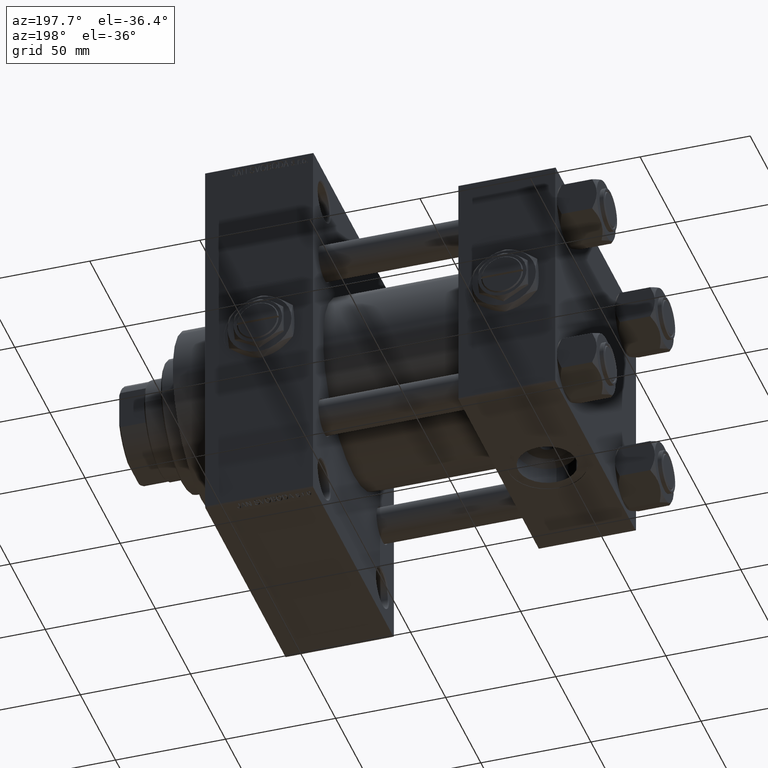
[diagram: clean part render]
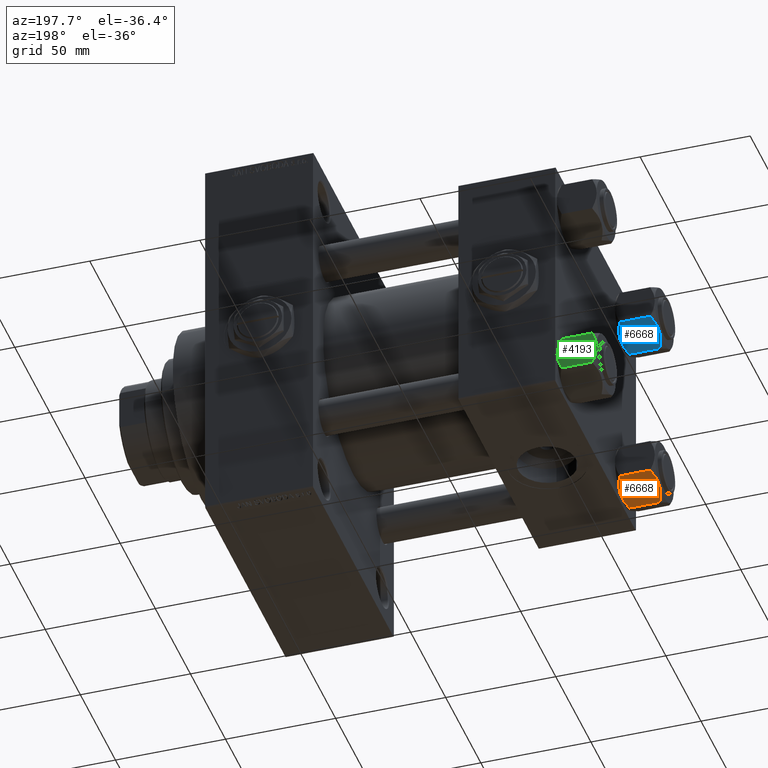
[diagram: same view with three faces highlighted in distinct colors, each labeled with its STEP entity id]
A machine part, auxiliary view with three faces highlighted in distinct colors.
Their STEP definitions:

[orange] entity #6668 — the highlighted planar face has unit normal (0, -0.5, 0.866).
#796 = LINE ( 'NONE', #23458, #42008 ) ;
#1434 = VERTEX_POINT ( 'NONE', #40582 ) ;
#1757 = VERTEX_POINT ( 'NONE', #40022 ) ;
#2180 = ORIENTED_EDGE ( 'NONE', *, *, #19809, .F. ) ;
#3326 = DIRECTION ( 'NONE',  ( -0.000000000000000000, -0.000000000000000000, 1.000000000000000000 ) ) ;
#3561 = CARTESIAN_POINT ( 'NONE',  ( 12.04818928091285635, -6.186557640478064890, -17.99999999999999645 ) ) ;
#3721 = VERTEX_POINT ( 'NONE', #48767 ) ;
#3804 = EDGE_CURVE ( 'NONE', #1757, #20440, #23828, .T. ) ;
#4008 = PLANE ( 'NONE',  #46385 ) ;
#4529 = CARTESIAN_POINT ( 'NONE',  ( 15.62000000000000455, -3.536926823623210771E-15, -16.00000000000000000 ) ) ;
#4910 = B_SPLINE_CURVE_WITH_KNOTS ( 'NONE', 3,
 ( #41395, #7141, #37620, #18486, #33833, #49192, #22509, #30060 ),
 .UNSPECIFIED., .F., .F.,
 ( 4, 2, 2, 4 ),
 ( 4.472842641884425184E-07, 0.003945636373369303986, 0.005918230917921863538, 0.007890825462474423957 ),
 .UNSPECIFIED. ) ;
#6599 = CARTESIAN_POINT ( 'NONE',  ( 14.92760668674625180, -1.199260397376455067, -16.58801072835992585 ) ) ;
#6668 = ADVANCED_FACE ( 'NONE', ( #23147 ), #4008, .F. ) ;
#6874 = VECTOR ( 'NONE', #43008, 999.9999999999998863 ) ;
#7141 = CARTESIAN_POINT ( 'NONE',  ( 8.502393313253758578, -12.32805640973648309, -1.411989271640068599 ) ) ;
#8682 = EDGE_CURVE ( 'NONE', #25413, #44600, #42943, .T. ) ;
#9401 = EDGE_CURVE ( 'NONE', #44600, #31533, #23045, .T. ) ;
#9485 = CARTESIAN_POINT ( 'NONE',  ( 7.903528262322682352, -13.36532110482643176, -16.00000000000000000 ) ) ;
#11119 = VERTEX_POINT ( 'NONE', #4529 ) ;
#11131 = LINE ( 'NONE', #37821, #30720 ) ;
#11246 = CARTESIAN_POINT ( 'NONE',  ( 10.40215497533437627, -9.037572688741349225, -17.80281335400754372 ) ) ;
#11763 = CARTESIAN_POINT ( 'NONE',  ( 15.52647173767733157, -0.1619957022865091689, -2.000000000000000000 ) ) ;
#12150 = DIRECTION ( 'NONE',  ( 0.5000000000000001110, 0.8660254037844387076, -0.000000000000000000 ) ) ;
#12198 = EDGE_CURVE ( 'NONE', #11119, #25413, #14824, .T. ) ;
#12590 = ORIENTED_EDGE ( 'NONE', *, *, #30969, .T. ) ;
#12751 = EDGE_CURVE ( 'NONE', #43592, #3721, #4910, .T. ) ;
#13408 = CARTESIAN_POINT ( 'NONE',  ( 7.903528262322682352, -13.36532110482643176, -2.000000000000000000 ) ) ;
#13466 = EDGE_CURVE ( 'NONE', #31533, #1757, #18307, .T. ) ;
#13630 = EDGE_LOOP ( 'NONE', ( #37164, #12590, #38223, #2180, #27986, #21152, #31829, #41429, #24706, #16872 ) ) ;
#14824 = LINE ( 'NONE', #15812, #6874 ) ;
#15540 = CARTESIAN_POINT ( 'NONE',  ( 12.37702203890362895, -5.617002596445058060, 1.219727444046192488E-16 ) ) ;
#15812 = CARTESIAN_POINT ( 'NONE',  ( 15.62000000000000455, -3.536926823623210771E-15, -16.00000000000000000 ) ) ;
#16164 = DIRECTION ( 'NONE',  ( 0.5000000000000001110, 0.8660254037844387076, -0.000000000000000000 ) ) ;
#16872 = ORIENTED_EDGE ( 'NONE', *, *, #8682, .F. ) ;
#17381 = VECTOR ( 'NONE', #29880, 999.9999999999998863 ) ;
#18023 = CARTESIAN_POINT ( 'NONE',  ( 15.62000000000000455, -3.536926823623210771E-15, -18.00000000000000000 ) ) ;
#18307 = LINE ( 'NONE', #49013, #17381 ) ;
#18486 = CARTESIAN_POINT ( 'NONE',  ( 10.06459418565412989, -9.622245127110609531, -0.3836066851120581433 ) ) ;
#19073 = CARTESIAN_POINT ( 'NONE',  ( 13.99051971937274708, -2.822342635978012826, -0.7317196846281138756 ) ) ;
#19809 = EDGE_CURVE ( 'NONE', #3721, #1434, #25906, .T. ) ;
#19915 = VECTOR ( 'NONE', #38426, 1000.000000000000000 ) ;
#20382 = DIRECTION ( 'NONE',  ( -0.8660254037844387076, 0.5000000000000001110, 0.000000000000000000 ) ) ;
#20440 = VERTEX_POINT ( 'NONE', #46069 ) ;
#21152 = ORIENTED_EDGE ( 'NONE', *, *, #33279, .F. ) ;
#22509 = CARTESIAN_POINT ( 'NONE',  ( 11.38181071908715047, -7.340759166634875044, -6.776263578034402713E-17 ) ) ;
#23045 = B_SPLINE_CURVE_WITH_KNOTS ( 'NONE', 3,
 ( #23572, #42959, #11246, #42203, #34888, #35143, #46473, #49508 ),
 .UNSPECIFIED., .F., .F.,
 ( 4, 2, 2, 4 ),
 ( 0.007890825462474429161, 0.01181022244528553977, 0.01376992093669109768, 0.01572961942809665559 ),
 .UNSPECIFIED. ) ;
#23147 = FACE_OUTER_BOUND ( 'NONE', #13630, .T. ) ;
#23342 = CARTESIAN_POINT ( 'NONE',  ( 14.30591678195076533, -2.276058899034901550, -0.9473872146228129454 ) ) ;
#23458 = CARTESIAN_POINT ( 'NONE',  ( 15.62000000000000455, -3.536926823623210771E-15, -1.999999999999998224 ) ) ;
#23572 = CARTESIAN_POINT ( 'NONE',  ( 11.71500000000000519, -6.763658403556470411, -18.00000000000000000 ) ) ;
#23828 = LINE ( 'NONE', #28104, #19915 ) ;
#24706 = ORIENTED_EDGE ( 'NONE', *, *, #9401, .F. ) ;
#25413 = VERTEX_POINT ( 'NONE', #44704 ) ;
#25906 = B_SPLINE_CURVE_WITH_KNOTS ( 'NONE', 3,
 ( #26369, #15540, #38204, #19073, #23342, #49777, #46241, #11763 ),
 .UNSPECIFIED., .F., .F.,
 ( 4, 2, 2, 4 ),
 ( 0.007890825462474423957, 0.01181022244528553630, 0.01376992093669109421, 0.01572961942809665212 ),
 .UNSPECIFIED. ) ;
#26369 = CARTESIAN_POINT ( 'NONE',  ( 11.71500000000000519, -6.763658403556470411, 0.000000000000000000 ) ) ;
#26708 = CARTESIAN_POINT ( 'NONE',  ( 14.31545111198822262, -2.259544954993898624, -17.08577173959729834 ) ) ;
#27986 = ORIENTED_EDGE ( 'NONE', *, *, #12751, .F. ) ;
#28104 = CARTESIAN_POINT ( 'NONE',  ( 7.810000000000007603, -13.52731680711293016, -18.00000000000000000 ) ) ;
#29513 = CARTESIAN_POINT ( 'NONE',  ( 12.38621571200405391, -5.601078687526932498, -17.94910618364698607 ) ) ;
#29880 = DIRECTION ( 'NONE',  ( -0.5000000000000001110, -0.8660254037844387076, 0.000000000000000000 ) ) ;
#30060 = CARTESIAN_POINT ( 'NONE',  ( 11.71500000000000519, -6.763658403556470411, 0.000000000000000000 ) ) ;
#30720 = VECTOR ( 'NONE', #3326, 1000.000000000000000 ) ;
#30969 = EDGE_CURVE ( 'NONE', #11119, #46197, #11131, .T. ) ;
#31533 = VERTEX_POINT ( 'NONE', #9485 ) ;
#31829 = ORIENTED_EDGE ( 'NONE', *, *, #3804, .F. ) ;
#31993 = EDGE_CURVE ( 'NONE', #1434, #46197, #796, .T. ) ;
#32804 = CARTESIAN_POINT ( 'NONE',  ( 15.52647173767733157, -0.1619957022865091689, -16.00000000000000000 ) ) ;
#33279 = EDGE_CURVE ( 'NONE', #20440, #43592, #45882, .T. ) ;
#33536 = CARTESIAN_POINT ( 'NONE',  ( 13.36540581434588049, -3.905071680002326406, -17.61639331488793658 ) ) ;
#33833 = CARTESIAN_POINT ( 'NONE',  ( 10.38662926516872531, -9.064464007571851667, -0.2430846701012975009 ) ) ;
#34720 = CARTESIAN_POINT ( 'NONE',  ( 11.71500000000000519, -6.763658403556470411, -18.00000000000000000 ) ) ;
#34888 = CARTESIAN_POINT ( 'NONE',  ( 9.124083218049246824, -11.25125790807804016, -17.05261278537718539 ) ) ;
#35143 = CARTESIAN_POINT ( 'NONE',  ( 8.506059550806623903, -12.32170630002230638, -16.56553707812499354 ) ) ;
#35729 = DIRECTION ( 'NONE',  ( -0.5000000000000000000, -0.8660254037844385966, 0.000000000000000000 ) ) ;
#37164 = ORIENTED_EDGE ( 'NONE', *, *, #12198, .F. ) ;
#37620 = CARTESIAN_POINT ( 'NONE',  ( 9.114548888011794858, -11.26777185211903998, -0.9142282604026928938 ) ) ;
#37821 = CARTESIAN_POINT ( 'NONE',  ( 15.62000000000000455, -3.536926823623210771E-15, -18.00000000000000000 ) ) ;
#38025 = VECTOR ( 'NONE', #12150, 999.9999999999998863 ) ;
#38094 = CARTESIAN_POINT ( 'NONE',  ( 15.62000000000000455, -3.536926823623210771E-15, -1.999999999999998224 ) ) ;
#38204 = CARTESIAN_POINT ( 'NONE',  ( 13.02784502466563588, -4.489744118371591597, -0.1971866459924554171 ) ) ;
#38223 = ORIENTED_EDGE ( 'NONE', *, *, #31993, .F. ) ;
#38426 = DIRECTION ( 'NONE',  ( -0.000000000000000000, -0.000000000000000000, 1.000000000000000000 ) ) ;
#40022 = CARTESIAN_POINT ( 'NONE',  ( 7.810000000000007603, -13.52731680711293016, -16.00000000000000000 ) ) ;
#40582 = CARTESIAN_POINT ( 'NONE',  ( 15.52647173767733157, -0.1619957022865091689, -2.000000000000000000 ) ) ;
#41395 = CARTESIAN_POINT ( 'NONE',  ( 7.903528262322682352, -13.36532110482643176, -2.000000000000000000 ) ) ;
#41429 = ORIENTED_EDGE ( 'NONE', *, *, #13466, .F. ) ;
#41587 = CARTESIAN_POINT ( 'NONE',  ( 11.71500000000000519, -6.763658403556470411, -18.00000000000000000 ) ) ;
#42008 = VECTOR ( 'NONE', #16164, 999.9999999999998863 ) ;
#42203 = CARTESIAN_POINT ( 'NONE',  ( 9.439480280627265074, -10.70497417113492666, -17.26828031537187869 ) ) ;
#42943 = B_SPLINE_CURVE_WITH_KNOTS ( 'NONE', 3,
 ( #32804, #6599, #26708, #33536, #49384, #29513, #3561, #41587 ),
 .UNSPECIFIED., .F., .F.,
 ( 4, 2, 2, 4 ),
 ( 4.472842641924621132E-07, 0.003945636373369313527, 0.005918230917921871344, 0.007890825462474429161 ),
 .UNSPECIFIED. ) ;
#42959 = CARTESIAN_POINT ( 'NONE',  ( 11.05297796109638320, -7.910314210667885426, -18.00000000000000000 ) ) ;
#43008 = DIRECTION ( 'NONE',  ( -0.5000000000000001110, -0.8660254037844387076, 0.000000000000000000 ) ) ;
#43592 = VERTEX_POINT ( 'NONE', #13408 ) ;
#43936 = CARTESIAN_POINT ( 'NONE',  ( 15.62000000000000455, -3.536926823623210771E-15, -1.999999999999998224 ) ) ;
#44600 = VERTEX_POINT ( 'NONE', #34720 ) ;
#44704 = CARTESIAN_POINT ( 'NONE',  ( 15.52647173767733157, -0.1619957022865091689, -16.00000000000000000 ) ) ;
#45882 = LINE ( 'NONE', #38094, #38025 ) ;
#46069 = CARTESIAN_POINT ( 'NONE',  ( 7.810000000000007603, -13.52731680711293016, -1.999999999999998224 ) ) ;
#46197 = VERTEX_POINT ( 'NONE', #43936 ) ;
#46241 = CARTESIAN_POINT ( 'NONE',  ( 15.22736220980736732, -0.6800686015852290822, -1.706311779141445495 ) ) ;
#46385 = AXIS2_PLACEMENT_3D ( 'NONE', #18023, #20382, #35729 ) ;
#46473 = CARTESIAN_POINT ( 'NONE',  ( 8.202637790192648382, -12.84724820552770908, -16.29368822085855584 ) ) ;
#48767 = CARTESIAN_POINT ( 'NONE',  ( 11.71500000000000519, -6.763658403556470411, 0.000000000000000000 ) ) ;
#49013 = CARTESIAN_POINT ( 'NONE',  ( 15.62000000000000455, -3.536926823623210771E-15, -16.00000000000000000 ) ) ;
#49192 = CARTESIAN_POINT ( 'NONE',  ( 11.04378428799595646, -7.926238119586006547, -0.05089381635301474388 ) ) ;
#49384 = CARTESIAN_POINT ( 'NONE',  ( 13.04337073483128862, -4.462852799541089155, -17.75691532989871035 ) ) ;
#49508 = CARTESIAN_POINT ( 'NONE',  ( 7.903528262322682352, -13.36532110482643176, -16.00000000000000000 ) ) ;
#49777 = CARTESIAN_POINT ( 'NONE',  ( 14.92394044919338825, -1.205610507090637107, -1.434462921875002239 ) ) ;

[blue] entity #6668 — the highlighted planar face has unit normal (0, -0.5, 0.866).
#796 = LINE ( 'NONE', #23458, #42008 ) ;
#1434 = VERTEX_POINT ( 'NONE', #40582 ) ;
#1757 = VERTEX_POINT ( 'NONE', #40022 ) ;
#2180 = ORIENTED_EDGE ( 'NONE', *, *, #19809, .F. ) ;
#3326 = DIRECTION ( 'NONE',  ( -0.000000000000000000, -0.000000000000000000, 1.000000000000000000 ) ) ;
#3561 = CARTESIAN_POINT ( 'NONE',  ( 12.04818928091285635, -6.186557640478064890, -17.99999999999999645 ) ) ;
#3721 = VERTEX_POINT ( 'NONE', #48767 ) ;
#3804 = EDGE_CURVE ( 'NONE', #1757, #20440, #23828, .T. ) ;
#4008 = PLANE ( 'NONE',  #46385 ) ;
#4529 = CARTESIAN_POINT ( 'NONE',  ( 15.62000000000000455, -3.536926823623210771E-15, -16.00000000000000000 ) ) ;
#4910 = B_SPLINE_CURVE_WITH_KNOTS ( 'NONE', 3,
 ( #41395, #7141, #37620, #18486, #33833, #49192, #22509, #30060 ),
 .UNSPECIFIED., .F., .F.,
 ( 4, 2, 2, 4 ),
 ( 4.472842641884425184E-07, 0.003945636373369303986, 0.005918230917921863538, 0.007890825462474423957 ),
 .UNSPECIFIED. ) ;
#6599 = CARTESIAN_POINT ( 'NONE',  ( 14.92760668674625180, -1.199260397376455067, -16.58801072835992585 ) ) ;
#6668 = ADVANCED_FACE ( 'NONE', ( #23147 ), #4008, .F. ) ;
#6874 = VECTOR ( 'NONE', #43008, 999.9999999999998863 ) ;
#7141 = CARTESIAN_POINT ( 'NONE',  ( 8.502393313253758578, -12.32805640973648309, -1.411989271640068599 ) ) ;
#8682 = EDGE_CURVE ( 'NONE', #25413, #44600, #42943, .T. ) ;
#9401 = EDGE_CURVE ( 'NONE', #44600, #31533, #23045, .T. ) ;
#9485 = CARTESIAN_POINT ( 'NONE',  ( 7.903528262322682352, -13.36532110482643176, -16.00000000000000000 ) ) ;
#11119 = VERTEX_POINT ( 'NONE', #4529 ) ;
#11131 = LINE ( 'NONE', #37821, #30720 ) ;
#11246 = CARTESIAN_POINT ( 'NONE',  ( 10.40215497533437627, -9.037572688741349225, -17.80281335400754372 ) ) ;
#11763 = CARTESIAN_POINT ( 'NONE',  ( 15.52647173767733157, -0.1619957022865091689, -2.000000000000000000 ) ) ;
#12150 = DIRECTION ( 'NONE',  ( 0.5000000000000001110, 0.8660254037844387076, -0.000000000000000000 ) ) ;
#12198 = EDGE_CURVE ( 'NONE', #11119, #25413, #14824, .T. ) ;
#12590 = ORIENTED_EDGE ( 'NONE', *, *, #30969, .T. ) ;
#12751 = EDGE_CURVE ( 'NONE', #43592, #3721, #4910, .T. ) ;
#13408 = CARTESIAN_POINT ( 'NONE',  ( 7.903528262322682352, -13.36532110482643176, -2.000000000000000000 ) ) ;
#13466 = EDGE_CURVE ( 'NONE', #31533, #1757, #18307, .T. ) ;
#13630 = EDGE_LOOP ( 'NONE', ( #37164, #12590, #38223, #2180, #27986, #21152, #31829, #41429, #24706, #16872 ) ) ;
#14824 = LINE ( 'NONE', #15812, #6874 ) ;
#15540 = CARTESIAN_POINT ( 'NONE',  ( 12.37702203890362895, -5.617002596445058060, 1.219727444046192488E-16 ) ) ;
#15812 = CARTESIAN_POINT ( 'NONE',  ( 15.62000000000000455, -3.536926823623210771E-15, -16.00000000000000000 ) ) ;
#16164 = DIRECTION ( 'NONE',  ( 0.5000000000000001110, 0.8660254037844387076, -0.000000000000000000 ) ) ;
#16872 = ORIENTED_EDGE ( 'NONE', *, *, #8682, .F. ) ;
#17381 = VECTOR ( 'NONE', #29880, 999.9999999999998863 ) ;
#18023 = CARTESIAN_POINT ( 'NONE',  ( 15.62000000000000455, -3.536926823623210771E-15, -18.00000000000000000 ) ) ;
#18307 = LINE ( 'NONE', #49013, #17381 ) ;
#18486 = CARTESIAN_POINT ( 'NONE',  ( 10.06459418565412989, -9.622245127110609531, -0.3836066851120581433 ) ) ;
#19073 = CARTESIAN_POINT ( 'NONE',  ( 13.99051971937274708, -2.822342635978012826, -0.7317196846281138756 ) ) ;
#19809 = EDGE_CURVE ( 'NONE', #3721, #1434, #25906, .T. ) ;
#19915 = VECTOR ( 'NONE', #38426, 1000.000000000000000 ) ;
#20382 = DIRECTION ( 'NONE',  ( -0.8660254037844387076, 0.5000000000000001110, 0.000000000000000000 ) ) ;
#20440 = VERTEX_POINT ( 'NONE', #46069 ) ;
#21152 = ORIENTED_EDGE ( 'NONE', *, *, #33279, .F. ) ;
#22509 = CARTESIAN_POINT ( 'NONE',  ( 11.38181071908715047, -7.340759166634875044, -6.776263578034402713E-17 ) ) ;
#23045 = B_SPLINE_CURVE_WITH_KNOTS ( 'NONE', 3,
 ( #23572, #42959, #11246, #42203, #34888, #35143, #46473, #49508 ),
 .UNSPECIFIED., .F., .F.,
 ( 4, 2, 2, 4 ),
 ( 0.007890825462474429161, 0.01181022244528553977, 0.01376992093669109768, 0.01572961942809665559 ),
 .UNSPECIFIED. ) ;
#23147 = FACE_OUTER_BOUND ( 'NONE', #13630, .T. ) ;
#23342 = CARTESIAN_POINT ( 'NONE',  ( 14.30591678195076533, -2.276058899034901550, -0.9473872146228129454 ) ) ;
#23458 = CARTESIAN_POINT ( 'NONE',  ( 15.62000000000000455, -3.536926823623210771E-15, -1.999999999999998224 ) ) ;
#23572 = CARTESIAN_POINT ( 'NONE',  ( 11.71500000000000519, -6.763658403556470411, -18.00000000000000000 ) ) ;
#23828 = LINE ( 'NONE', #28104, #19915 ) ;
#24706 = ORIENTED_EDGE ( 'NONE', *, *, #9401, .F. ) ;
#25413 = VERTEX_POINT ( 'NONE', #44704 ) ;
#25906 = B_SPLINE_CURVE_WITH_KNOTS ( 'NONE', 3,
 ( #26369, #15540, #38204, #19073, #23342, #49777, #46241, #11763 ),
 .UNSPECIFIED., .F., .F.,
 ( 4, 2, 2, 4 ),
 ( 0.007890825462474423957, 0.01181022244528553630, 0.01376992093669109421, 0.01572961942809665212 ),
 .UNSPECIFIED. ) ;
#26369 = CARTESIAN_POINT ( 'NONE',  ( 11.71500000000000519, -6.763658403556470411, 0.000000000000000000 ) ) ;
#26708 = CARTESIAN_POINT ( 'NONE',  ( 14.31545111198822262, -2.259544954993898624, -17.08577173959729834 ) ) ;
#27986 = ORIENTED_EDGE ( 'NONE', *, *, #12751, .F. ) ;
#28104 = CARTESIAN_POINT ( 'NONE',  ( 7.810000000000007603, -13.52731680711293016, -18.00000000000000000 ) ) ;
#29513 = CARTESIAN_POINT ( 'NONE',  ( 12.38621571200405391, -5.601078687526932498, -17.94910618364698607 ) ) ;
#29880 = DIRECTION ( 'NONE',  ( -0.5000000000000001110, -0.8660254037844387076, 0.000000000000000000 ) ) ;
#30060 = CARTESIAN_POINT ( 'NONE',  ( 11.71500000000000519, -6.763658403556470411, 0.000000000000000000 ) ) ;
#30720 = VECTOR ( 'NONE', #3326, 1000.000000000000000 ) ;
#30969 = EDGE_CURVE ( 'NONE', #11119, #46197, #11131, .T. ) ;
#31533 = VERTEX_POINT ( 'NONE', #9485 ) ;
#31829 = ORIENTED_EDGE ( 'NONE', *, *, #3804, .F. ) ;
#31993 = EDGE_CURVE ( 'NONE', #1434, #46197, #796, .T. ) ;
#32804 = CARTESIAN_POINT ( 'NONE',  ( 15.52647173767733157, -0.1619957022865091689, -16.00000000000000000 ) ) ;
#33279 = EDGE_CURVE ( 'NONE', #20440, #43592, #45882, .T. ) ;
#33536 = CARTESIAN_POINT ( 'NONE',  ( 13.36540581434588049, -3.905071680002326406, -17.61639331488793658 ) ) ;
#33833 = CARTESIAN_POINT ( 'NONE',  ( 10.38662926516872531, -9.064464007571851667, -0.2430846701012975009 ) ) ;
#34720 = CARTESIAN_POINT ( 'NONE',  ( 11.71500000000000519, -6.763658403556470411, -18.00000000000000000 ) ) ;
#34888 = CARTESIAN_POINT ( 'NONE',  ( 9.124083218049246824, -11.25125790807804016, -17.05261278537718539 ) ) ;
#35143 = CARTESIAN_POINT ( 'NONE',  ( 8.506059550806623903, -12.32170630002230638, -16.56553707812499354 ) ) ;
#35729 = DIRECTION ( 'NONE',  ( -0.5000000000000000000, -0.8660254037844385966, 0.000000000000000000 ) ) ;
#37164 = ORIENTED_EDGE ( 'NONE', *, *, #12198, .F. ) ;
#37620 = CARTESIAN_POINT ( 'NONE',  ( 9.114548888011794858, -11.26777185211903998, -0.9142282604026928938 ) ) ;
#37821 = CARTESIAN_POINT ( 'NONE',  ( 15.62000000000000455, -3.536926823623210771E-15, -18.00000000000000000 ) ) ;
#38025 = VECTOR ( 'NONE', #12150, 999.9999999999998863 ) ;
#38094 = CARTESIAN_POINT ( 'NONE',  ( 15.62000000000000455, -3.536926823623210771E-15, -1.999999999999998224 ) ) ;
#38204 = CARTESIAN_POINT ( 'NONE',  ( 13.02784502466563588, -4.489744118371591597, -0.1971866459924554171 ) ) ;
#38223 = ORIENTED_EDGE ( 'NONE', *, *, #31993, .F. ) ;
#38426 = DIRECTION ( 'NONE',  ( -0.000000000000000000, -0.000000000000000000, 1.000000000000000000 ) ) ;
#40022 = CARTESIAN_POINT ( 'NONE',  ( 7.810000000000007603, -13.52731680711293016, -16.00000000000000000 ) ) ;
#40582 = CARTESIAN_POINT ( 'NONE',  ( 15.52647173767733157, -0.1619957022865091689, -2.000000000000000000 ) ) ;
#41395 = CARTESIAN_POINT ( 'NONE',  ( 7.903528262322682352, -13.36532110482643176, -2.000000000000000000 ) ) ;
#41429 = ORIENTED_EDGE ( 'NONE', *, *, #13466, .F. ) ;
#41587 = CARTESIAN_POINT ( 'NONE',  ( 11.71500000000000519, -6.763658403556470411, -18.00000000000000000 ) ) ;
#42008 = VECTOR ( 'NONE', #16164, 999.9999999999998863 ) ;
#42203 = CARTESIAN_POINT ( 'NONE',  ( 9.439480280627265074, -10.70497417113492666, -17.26828031537187869 ) ) ;
#42943 = B_SPLINE_CURVE_WITH_KNOTS ( 'NONE', 3,
 ( #32804, #6599, #26708, #33536, #49384, #29513, #3561, #41587 ),
 .UNSPECIFIED., .F., .F.,
 ( 4, 2, 2, 4 ),
 ( 4.472842641924621132E-07, 0.003945636373369313527, 0.005918230917921871344, 0.007890825462474429161 ),
 .UNSPECIFIED. ) ;
#42959 = CARTESIAN_POINT ( 'NONE',  ( 11.05297796109638320, -7.910314210667885426, -18.00000000000000000 ) ) ;
#43008 = DIRECTION ( 'NONE',  ( -0.5000000000000001110, -0.8660254037844387076, 0.000000000000000000 ) ) ;
#43592 = VERTEX_POINT ( 'NONE', #13408 ) ;
#43936 = CARTESIAN_POINT ( 'NONE',  ( 15.62000000000000455, -3.536926823623210771E-15, -1.999999999999998224 ) ) ;
#44600 = VERTEX_POINT ( 'NONE', #34720 ) ;
#44704 = CARTESIAN_POINT ( 'NONE',  ( 15.52647173767733157, -0.1619957022865091689, -16.00000000000000000 ) ) ;
#45882 = LINE ( 'NONE', #38094, #38025 ) ;
#46069 = CARTESIAN_POINT ( 'NONE',  ( 7.810000000000007603, -13.52731680711293016, -1.999999999999998224 ) ) ;
#46197 = VERTEX_POINT ( 'NONE', #43936 ) ;
#46241 = CARTESIAN_POINT ( 'NONE',  ( 15.22736220980736732, -0.6800686015852290822, -1.706311779141445495 ) ) ;
#46385 = AXIS2_PLACEMENT_3D ( 'NONE', #18023, #20382, #35729 ) ;
#46473 = CARTESIAN_POINT ( 'NONE',  ( 8.202637790192648382, -12.84724820552770908, -16.29368822085855584 ) ) ;
#48767 = CARTESIAN_POINT ( 'NONE',  ( 11.71500000000000519, -6.763658403556470411, 0.000000000000000000 ) ) ;
#49013 = CARTESIAN_POINT ( 'NONE',  ( 15.62000000000000455, -3.536926823623210771E-15, -16.00000000000000000 ) ) ;
#49192 = CARTESIAN_POINT ( 'NONE',  ( 11.04378428799595646, -7.926238119586006547, -0.05089381635301474388 ) ) ;
#49384 = CARTESIAN_POINT ( 'NONE',  ( 13.04337073483128862, -4.462852799541089155, -17.75691532989871035 ) ) ;
#49508 = CARTESIAN_POINT ( 'NONE',  ( 7.903528262322682352, -13.36532110482643176, -16.00000000000000000 ) ) ;
#49777 = CARTESIAN_POINT ( 'NONE',  ( 14.92394044919338825, -1.205610507090637107, -1.434462921875002239 ) ) ;

[green] entity #4193 — the highlighted planar face has unit normal (0, -1, -0).
#886 = VECTOR ( 'NONE', #38989, 1000.000000000000000 ) ;
#1321 = DIRECTION ( 'NONE',  ( -0.000000000000000000, -0.000000000000000000, 1.000000000000000000 ) ) ;
#1366 = CARTESIAN_POINT ( 'NONE',  ( 1.663410456966173179, 13.52731680711293905, -17.90195050864300441 ) ) ;
#2502 = CARTESIAN_POINT ( 'NONE',  ( 0.000000000000000000, 13.52731680711293905, 0.000000000000000000 ) ) ;
#2603 = LINE ( 'NONE', #17958, #37098 ) ;
#2753 = CARTESIAN_POINT ( 'NONE',  ( -7.809999999999997833, 13.52731680711293905, -16.00000000000000000 ) ) ;
#2846 = DIRECTION ( 'NONE',  ( -1.000000000000000000, 0.000000000000000000, 0.000000000000000000 ) ) ;
#3009 = B_SPLINE_CURVE_WITH_KNOTS ( 'NONE', 3,
 ( #14973, #30325, #3885, #33613, #30084, #3637, #34344, #7167 ),
 .UNSPECIFIED., .F., .F.,
 ( 4, 2, 2, 4 ),
 ( 0.01980594295952728401, 0.02179054093496182731, 0.02377513891039636715, 0.02774433486126545029 ),
 .UNSPECIFIED. ) ;
#3133 = CARTESIAN_POINT ( 'NONE',  ( -5.184073258379404692, 13.52731680711294082, -0.9481437906500841395 ) ) ;
#3637 = CARTESIAN_POINT ( 'NONE',  ( -2.638177715023110714, 13.52731680711294260, -17.79984593233011481 ) ) ;
#3885 = CARTESIAN_POINT ( 'NONE',  ( -6.427364677720471597, 13.52731680711293905, -16.56149306284486400 ) ) ;
#4193 = ADVANCED_FACE ( 'NONE', ( #24756 ), #47667, .F. ) ;
#4244 = CARTESIAN_POINT ( 'NONE',  ( 4.553769687922306630, 13.52731680711293905, -0.7327291995145164272 ) ) ;
#4382 = CARTESIAN_POINT ( 'NONE',  ( 7.030203932307582448, 13.52731680711294082, -16.29099812210859710 ) ) ;
#4548 = CARTESIAN_POINT ( 'NONE',  ( -0.3330234424833830031, 13.52731680711293905, 5.717472393966525748E-18 ) ) ;
#5102 = CARTESIAN_POINT ( 'NONE',  ( 7.810000000000001386, 13.52731680711293905, -18.00000000000000000 ) ) ;
#5126 = EDGE_CURVE ( 'NONE', #33094, #48723, #3009, .T. ) ;
#6866 = B_SPLINE_CURVE_WITH_KNOTS ( 'NONE', 3,
 ( #10931, #4548, #19910, #16389, #6900, #22269, #27708, #43075, #3133, #14712, #26279, #8593 ),
 .UNSPECIFIED., .F., .F.,
 ( 4, 2, 2, 2, 2, 4 ),
 ( 0.02774433486126545376, 0.02873404020403549225, 0.02972374554680553074, 0.03170315623234560426, 0.03368256691788568125, 0.03566197760342575823 ),
 .UNSPECIFIED. ) ;
#6900 = CARTESIAN_POINT ( 'NONE',  ( -1.663410456966174511, 13.52731680711293905, -0.09804949135699092544 ) ) ;
#7167 = CARTESIAN_POINT ( 'NONE',  ( 0.000000000000000000, 13.52731680711293905, -18.00000000000000000 ) ) ;
#7547 = ORIENTED_EDGE ( 'NONE', *, *, #21664, .T. ) ;
#7774 = CARTESIAN_POINT ( 'NONE',  ( -7.809999999999997833, 13.52731680711293905, -1.999999999999998224 ) ) ;
#7830 = CARTESIAN_POINT ( 'NONE',  ( -7.809999999999997833, 13.52731680711293905, -16.00000000000000000 ) ) ;
#7879 = CARTESIAN_POINT ( 'NONE',  ( 7.810000000000001386, 13.52731680711293905, -16.00000000000000000 ) ) ;
#8593 = CARTESIAN_POINT ( 'NONE',  ( -7.622943475354646559, 13.52731680711293905, -2.000000000000000000 ) ) ;
#8804 = VERTEX_POINT ( 'NONE', #42826 ) ;
#10931 = CARTESIAN_POINT ( 'NONE',  ( 0.000000000000000000, 13.52731680711293905, 0.000000000000000000 ) ) ;
#11601 = DIRECTION ( 'NONE',  ( 1.000000000000000000, 0.000000000000000000, 0.000000000000000000 ) ) ;
#11608 = ORIENTED_EDGE ( 'NONE', *, *, #30231, .F. ) ;
#12059 = CARTESIAN_POINT ( 'NONE',  ( 5.189513245496330640, 13.52731680711293727, -0.9501108431732594450 ) ) ;
#12449 = CARTESIAN_POINT ( 'NONE',  ( 0.3330234424833813378, 13.52731680711293905, -18.00000000000000355 ) ) ;
#14712 = CARTESIAN_POINT ( 'NONE',  ( -6.422751913021825132, 13.52731680711294260, -1.436509110925897614 ) ) ;
#14973 = CARTESIAN_POINT ( 'NONE',  ( -7.622943475354646559, 13.52731680711293905, -16.00000000000000000 ) ) ;
#16389 = CARTESIAN_POINT ( 'NONE',  ( -1.333889873825133243, 13.52731680711293727, -0.06156641003439514842 ) ) ;
#16478 = CARTESIAN_POINT ( 'NONE',  ( 1.333889873825132355, 13.52731680711293727, -17.93843358996560511 ) ) ;
#16752 = B_SPLINE_CURVE_WITH_KNOTS ( 'NONE', 3,
 ( #35967, #43026, #46541, #12059, #4244, #43775, #27402, #20117 ),
 .UNSPECIFIED., .F., .F.,
 ( 4, 2, 2, 4 ),
 ( 0.01980594295952728401, 0.02179054093496182731, 0.02377513891039636715, 0.02774433486126545376 ),
 .UNSPECIFIED. ) ;
#16877 = VECTOR ( 'NONE', #19501, 1000.000000000000000 ) ;
#17958 = CARTESIAN_POINT ( 'NONE',  ( -7.809999999999997833, 13.52731680711293905, -1.999999999999998224 ) ) ;
#18676 = ORIENTED_EDGE ( 'NONE', *, *, #23501, .F. ) ;
#19501 = DIRECTION ( 'NONE',  ( -0.000000000000000000, -0.000000000000000000, 1.000000000000000000 ) ) ;
#19910 = CARTESIAN_POINT ( 'NONE',  ( -0.6693083573771212436, 13.52731680711293905, -0.01249333081108270314 ) ) ;
#20117 = CARTESIAN_POINT ( 'NONE',  ( 0.000000000000000000, 13.52731680711293905, 0.000000000000000000 ) ) ;
#20644 = EDGE_LOOP ( 'NONE', ( #18676, #7547, #42833, #45638, #11608, #25600, #48486, #47907, #42394, #40322 ) ) ;
#21265 = CARTESIAN_POINT ( 'NONE',  ( -7.622943475354646559, 13.52731680711293905, -16.00000000000000000 ) ) ;
#21664 = EDGE_CURVE ( 'NONE', #22049, #8804, #27290, .T. ) ;
#22049 = VERTEX_POINT ( 'NONE', #46379 ) ;
#22269 = CARTESIAN_POINT ( 'NONE',  ( -2.644243758052991389, 13.52731680711294260, -0.2408281198023992098 ) ) ;
#22389 = LINE ( 'NONE', #2753, #42665 ) ;
#23501 = EDGE_CURVE ( 'NONE', #22049, #33094, #22389, .T. ) ;
#23781 = CARTESIAN_POINT ( 'NONE',  ( 0.6693083573771192452, 13.52731680711293905, -17.98750666918892094 ) ) ;
#24036 = CARTESIAN_POINT ( 'NONE',  ( 0.000000000000000000, 13.52731680711293905, -18.00000000000000000 ) ) ;
#24756 = FACE_OUTER_BOUND ( 'NONE', #20644, .T. ) ;
#25600 = ORIENTED_EDGE ( 'NONE', *, *, #28777, .F. ) ;
#26279 = CARTESIAN_POINT ( 'NONE',  ( -7.030203932307585113, 13.52731680711294082, -1.709001877891394239 ) ) ;
#27288 = CARTESIAN_POINT ( 'NONE',  ( 3.287826776903149728, 13.52731680711294082, -17.61954155462466431 ) ) ;
#27290 = LINE ( 'NONE', #35612, #16877 ) ;
#27402 = CARTESIAN_POINT ( 'NONE',  ( 1.335584685993417065, 13.52731680711294260, -9.486769009248166263E-17 ) ) ;
#27708 = CARTESIAN_POINT ( 'NONE',  ( -3.287826776903153281, 13.52731680711294082, -0.3804584453753372952 ) ) ;
#27741 = VECTOR ( 'NONE', #11601, 1000.000000000000000 ) ;
#28777 = EDGE_CURVE ( 'NONE', #46871, #40166, #2603, .T. ) ;
#29048 = CARTESIAN_POINT ( 'NONE',  ( 7.810000000000001386, 13.52731680711293905, -1.999999999999998224 ) ) ;
#30084 = CARTESIAN_POINT ( 'NONE',  ( -4.553769687922306630, 13.52731680711293905, -17.26727080048548046 ) ) ;
#30231 = EDGE_CURVE ( 'NONE', #40166, #33813, #16752, .T. ) ;
#30325 = CARTESIAN_POINT ( 'NONE',  ( -7.030888348548061551, 13.52731680711293905, -16.29066211644969897 ) ) ;
#31066 = CARTESIAN_POINT ( 'NONE',  ( 7.622943475354646559, 13.52731680711293905, -16.00000000000000000 ) ) ;
#31576 = CARTESIAN_POINT ( 'NONE',  ( 4.557734399832410688, 13.52731680711294260, -17.26585298258849122 ) ) ;
#31745 = EDGE_CURVE ( 'NONE', #48723, #32079, #37063, .T. ) ;
#32079 = VERTEX_POINT ( 'NONE', #38565 ) ;
#32917 = CARTESIAN_POINT ( 'NONE',  ( 0.000000000000000000, 13.52731680711293905, -18.00000000000000000 ) ) ;
#33094 = VERTEX_POINT ( 'NONE', #21265 ) ;
#33211 = VECTOR ( 'NONE', #1321, 1000.000000000000000 ) ;
#33375 = EDGE_CURVE ( 'NONE', #46262, #46871, #43624, .T. ) ;
#33461 = DIRECTION ( 'NONE',  ( 1.000000000000000000, 0.000000000000000000, 0.000000000000000000 ) ) ;
#33613 = CARTESIAN_POINT ( 'NONE',  ( -5.189513245496329752, 13.52731680711293727, -17.04988915682674033 ) ) ;
#33813 = VERTEX_POINT ( 'NONE', #2502 ) ;
#34344 = CARTESIAN_POINT ( 'NONE',  ( -1.335584685993417287, 13.52731680711294082, -18.00000000000000000 ) ) ;
#34828 = CARTESIAN_POINT ( 'NONE',  ( 7.622943475354646559, 13.52731680711293905, -2.000000000000000000 ) ) ;
#35235 = EDGE_CURVE ( 'NONE', #33813, #38975, #6866, .T. ) ;
#35612 = CARTESIAN_POINT ( 'NONE',  ( -7.809999999999997833, 13.52731680711293905, -18.00000000000000000 ) ) ;
#35967 = CARTESIAN_POINT ( 'NONE',  ( 7.622943475354646559, 13.52731680711293905, -2.000000000000000000 ) ) ;
#35980 = AXIS2_PLACEMENT_3D ( 'NONE', #44141, #44386, #40364 ) ;
#37063 = B_SPLINE_CURVE_WITH_KNOTS ( 'NONE', 3,
 ( #24036, #12449, #23781, #16478, #1366, #39132, #27288, #31576, #38882, #42657, #4382, #31066 ),
 .UNSPECIFIED., .F., .F.,
 ( 4, 2, 2, 2, 2, 4 ),
 ( 0.02774433486126545029, 0.02873404020403548878, 0.02972374554680552727, 0.03170315623234559732, 0.03368256691788567431, 0.03566197760342575129 ),
 .UNSPECIFIED. ) ;
#37098 = VECTOR ( 'NONE', #2846, 1000.000000000000000 ) ;
#37212 = EDGE_CURVE ( 'NONE', #32079, #46262, #46335, .T. ) ;
#38359 = EDGE_CURVE ( 'NONE', #38975, #8804, #42515, .T. ) ;
#38565 = CARTESIAN_POINT ( 'NONE',  ( 7.622943475354646559, 13.52731680711293905, -16.00000000000000000 ) ) ;
#38882 = CARTESIAN_POINT ( 'NONE',  ( 5.184073258379402027, 13.52731680711294082, -17.05185620934991775 ) ) ;
#38975 = VERTEX_POINT ( 'NONE', #46719 ) ;
#38989 = DIRECTION ( 'NONE',  ( -1.000000000000000000, 0.000000000000000000, 0.000000000000000000 ) ) ;
#39132 = CARTESIAN_POINT ( 'NONE',  ( 2.644243758052989612, 13.52731680711294260, -17.75917188019759863 ) ) ;
#40166 = VERTEX_POINT ( 'NONE', #34828 ) ;
#40322 = ORIENTED_EDGE ( 'NONE', *, *, #5126, .F. ) ;
#40364 = DIRECTION ( 'NONE',  ( 0.000000000000000000, -0.000000000000000000, -1.000000000000000000 ) ) ;
#42394 = ORIENTED_EDGE ( 'NONE', *, *, #31745, .F. ) ;
#42515 = LINE ( 'NONE', #7774, #886 ) ;
#42657 = CARTESIAN_POINT ( 'NONE',  ( 6.422751913021825132, 13.52731680711294260, -16.56349088907410660 ) ) ;
#42665 = VECTOR ( 'NONE', #33461, 1000.000000000000000 ) ;
#42826 = CARTESIAN_POINT ( 'NONE',  ( -7.809999999999997833, 13.52731680711293905, -1.999999999999998224 ) ) ;
#42833 = ORIENTED_EDGE ( 'NONE', *, *, #38359, .F. ) ;
#43026 = CARTESIAN_POINT ( 'NONE',  ( 7.030888348548067768, 13.52731680711294260, -1.709337883550299253 ) ) ;
#43075 = CARTESIAN_POINT ( 'NONE',  ( -4.557734399832415129, 13.52731680711294260, -0.7341470174115148906 ) ) ;
#43624 = LINE ( 'NONE', #5102, #33211 ) ;
#43775 = CARTESIAN_POINT ( 'NONE',  ( 2.638177715023107162, 13.52731680711293905, -0.2001540676698846388 ) ) ;
#44141 = CARTESIAN_POINT ( 'NONE',  ( -7.809999999999997833, 13.52731680711293905, -18.00000000000000000 ) ) ;
#44386 = DIRECTION ( 'NONE',  ( 0.000000000000000000, -1.000000000000000000, 0.000000000000000000 ) ) ;
#45638 = ORIENTED_EDGE ( 'NONE', *, *, #35235, .F. ) ;
#46262 = VERTEX_POINT ( 'NONE', #7879 ) ;
#46335 = LINE ( 'NONE', #7830, #27741 ) ;
#46379 = CARTESIAN_POINT ( 'NONE',  ( -7.809999999999997833, 13.52731680711293905, -16.00000000000000000 ) ) ;
#46541 = CARTESIAN_POINT ( 'NONE',  ( 6.427364677720476926, 13.52731680711294082, -1.438506937155140664 ) ) ;
#46719 = CARTESIAN_POINT ( 'NONE',  ( -7.622943475354646559, 13.52731680711293905, -2.000000000000000000 ) ) ;
#46871 = VERTEX_POINT ( 'NONE', #29048 ) ;
#47667 = PLANE ( 'NONE',  #35980 ) ;
#47907 = ORIENTED_EDGE ( 'NONE', *, *, #37212, .F. ) ;
#48486 = ORIENTED_EDGE ( 'NONE', *, *, #33375, .F. ) ;
#48723 = VERTEX_POINT ( 'NONE', #32917 ) ;